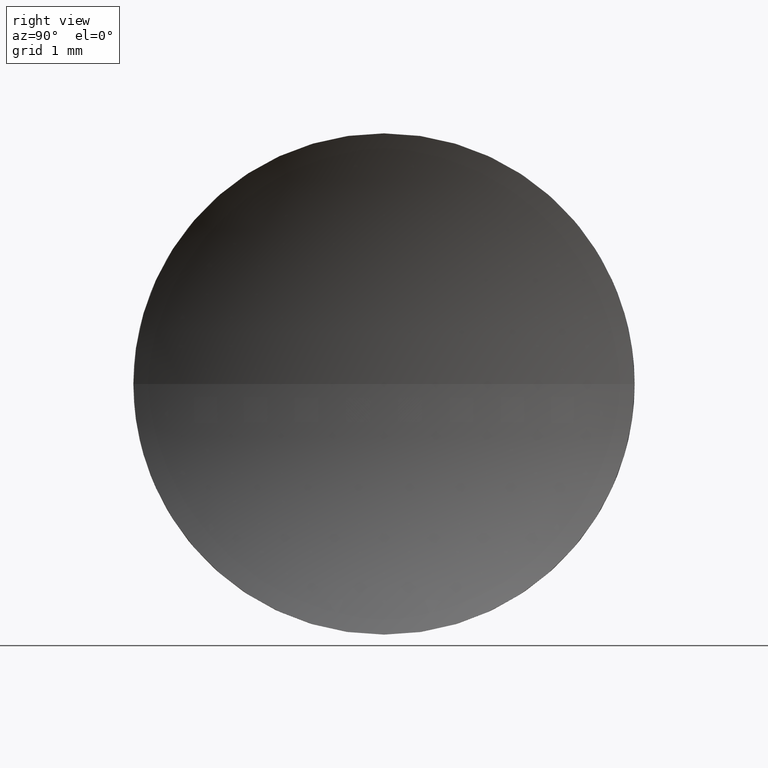
[diagram: clean part render]
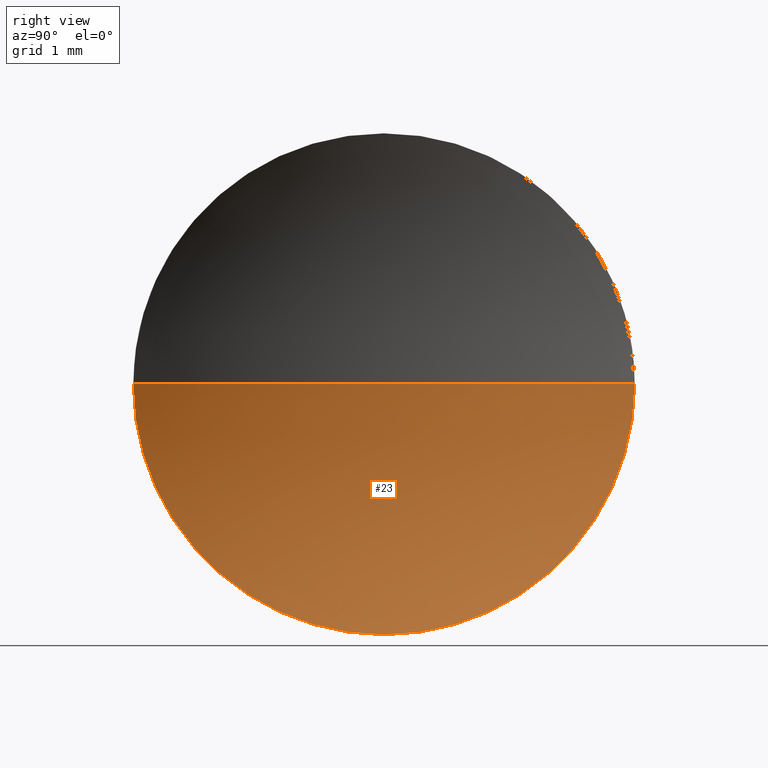
[diagram: same view with one face highlighted and labeled with its STEP entity id]
A machine part, right view. The second image highlights one B-rep face of the part: STEP entity #23.
In plain terms, the highlighted spherical surface has radius 6.88 mm.
Its self-contained STEP definition (entity closure, byte-faithful):
#9 = EDGE_CURVE ( 'NONE', #129, #145, #72, .T. ) ;
#22 = CIRCLE ( 'NONE', #74, 3.149999999999998100 ) ;
#23 = ADVANCED_FACE ( 'NONE', ( #142 ), #87, .F. ) ;
#26 = CARTESIAN_POINT ( 'NONE',  ( 24.46435373033985200, 13.03112609140304000, 0.0000000000000000000 ) ) ;
#31 = VERTEX_POINT ( 'NONE', #41 ) ;
#32 = CARTESIAN_POINT ( 'NONE',  ( 24.46435373033985200, 13.03112609140304000, -3.149999999999998100 ) ) ;
#37 = DIRECTION ( 'NONE',  ( 0.0000000000000000000, 0.0000000000000000000, 1.000000000000000000 ) ) ;
#41 = CARTESIAN_POINT ( 'NONE',  ( 23.70088052256434400, 13.03112609140304200, 0.0000000000000000000 ) ) ;
#46 = ORIENTED_EDGE ( 'NONE', *, *, #144, .T. ) ;
#47 = CIRCLE ( 'NONE', #78, 6.880000000000000800 ) ;
#48 = VERTEX_POINT ( 'NONE', #152 ) ;
#60 = DIRECTION ( 'NONE',  ( 0.0000000000000000000, -1.000000000000000000, -1.224646799147353200E-016 ) ) ;
#67 = CARTESIAN_POINT ( 'NONE',  ( 24.46435373033985200, 9.881126091403043400, 0.0000000000000000000 ) ) ;
#68 = CARTESIAN_POINT ( 'NONE',  ( 30.58088052256434300, 13.03112609140304200, 0.0000000000000000000 ) ) ;
#69 = DIRECTION ( 'NONE',  ( 0.0000000000000000000, 0.0000000000000000000, -1.000000000000000000 ) ) ;
#70 = EDGE_CURVE ( 'NONE', #48, #129, #22, .T. ) ;
#72 = CIRCLE ( 'NONE', #109, 3.149999999999998100 ) ;
#74 = AXIS2_PLACEMENT_3D ( 'NONE', #169, #135, #121 ) ;
#75 = ORIENTED_EDGE ( 'NONE', *, *, #94, .F. ) ;
#78 = AXIS2_PLACEMENT_3D ( 'NONE', #165, #69, #85 ) ;
#83 = DIRECTION ( 'NONE',  ( 0.0000000000000000000, -1.000000000000000000, 0.0000000000000000000 ) ) ;
#85 = DIRECTION ( 'NONE',  ( -1.000000000000000000, 0.0000000000000000000, 0.0000000000000000000 ) ) ;
#87 = SPHERICAL_SURFACE ( 'NONE', #167, 6.880000000000000800 ) ;
#94 = EDGE_CURVE ( 'NONE', #145, #31, #47, .T. ) ;
#96 = ORIENTED_EDGE ( 'NONE', *, *, #9, .F. ) ;
#97 = DIRECTION ( 'NONE',  ( -1.000000000000000000, -0.0000000000000000000, -0.0000000000000000000 ) ) ;
#104 = DIRECTION ( 'NONE',  ( 0.0000000000000000000, -1.224646799147353200E-016, 1.000000000000000000 ) ) ;
#109 = AXIS2_PLACEMENT_3D ( 'NONE', #26, #97, #176 ) ;
#111 = AXIS2_PLACEMENT_3D ( 'NONE', #68, #104, #60 ) ;
#121 = DIRECTION ( 'NONE',  ( 0.0000000000000000000, 0.0000000000000000000, 1.000000000000000000 ) ) ;
#129 = VERTEX_POINT ( 'NONE', #32 ) ;
#130 = CARTESIAN_POINT ( 'NONE',  ( 30.58088052256434300, 13.03112609140304200, 0.0000000000000000000 ) ) ;
#134 = CIRCLE ( 'NONE', #111, 6.880000000000000800 ) ;
#135 = DIRECTION ( 'NONE',  ( -1.000000000000000000, -0.0000000000000000000, -0.0000000000000000000 ) ) ;
#140 = EDGE_LOOP ( 'NONE', ( #180, #46, #75, #96 ) ) ;
#142 = FACE_OUTER_BOUND ( 'NONE', #140, .T. ) ;
#144 = EDGE_CURVE ( 'NONE', #48, #31, #134, .T. ) ;
#145 = VERTEX_POINT ( 'NONE', #67 ) ;
#152 = CARTESIAN_POINT ( 'NONE',  ( 24.46435373033985200, 16.18112609140303700, 3.857637417314159200E-016 ) ) ;
#165 = CARTESIAN_POINT ( 'NONE',  ( 30.58088052256434300, 13.03112609140304200, 0.0000000000000000000 ) ) ;
#167 = AXIS2_PLACEMENT_3D ( 'NONE', #130, #37, #83 ) ;
#169 = CARTESIAN_POINT ( 'NONE',  ( 24.46435373033985200, 13.03112609140304000, 0.0000000000000000000 ) ) ;
#176 = DIRECTION ( 'NONE',  ( 0.0000000000000000000, 0.0000000000000000000, 1.000000000000000000 ) ) ;
#180 = ORIENTED_EDGE ( 'NONE', *, *, #70, .F. ) ;